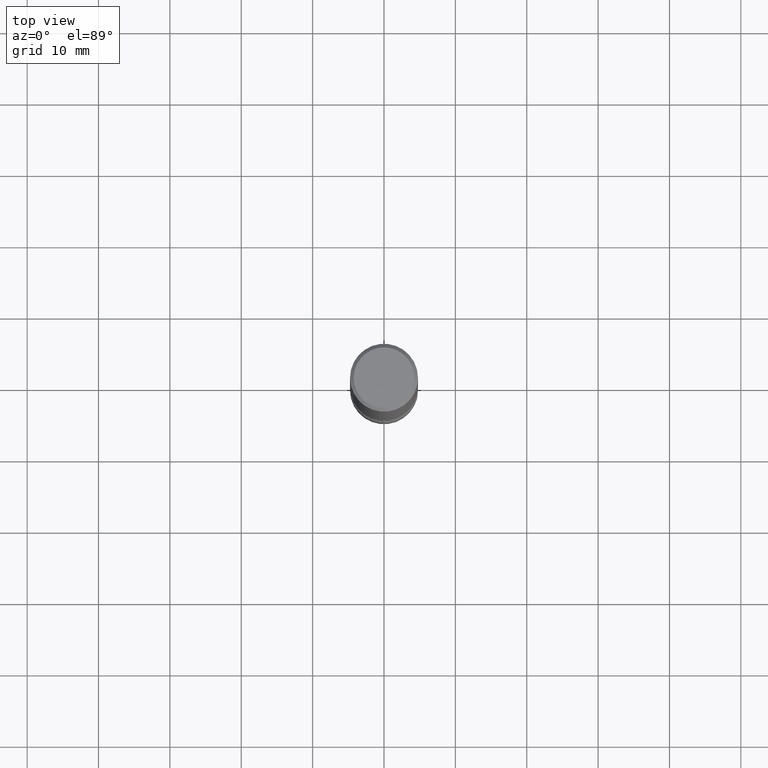
[diagram: clean part render]
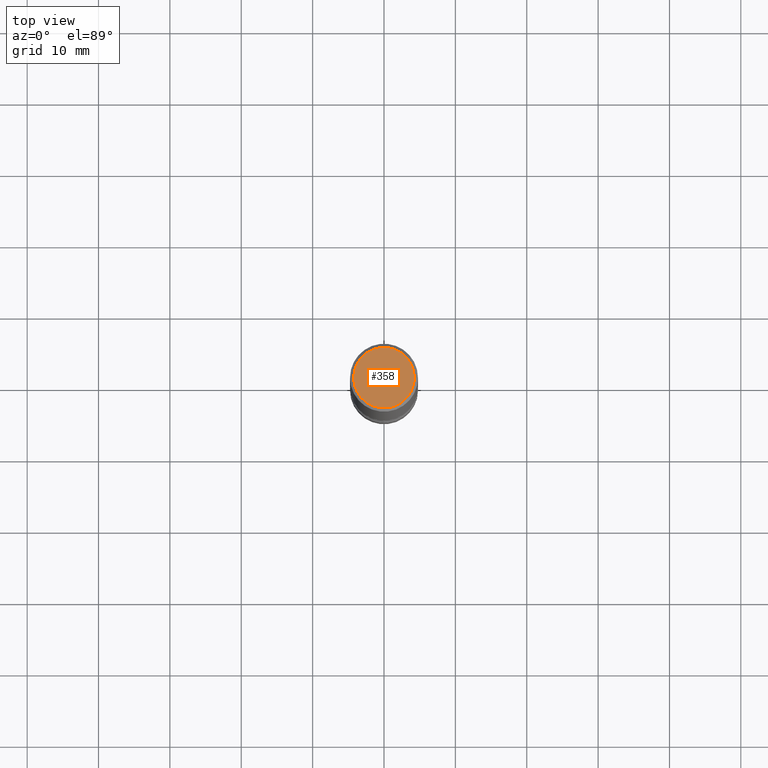
[diagram: same view with one face highlighted and labeled with its STEP entity id]
A machine part, top view. The second image highlights one B-rep face of the part: STEP entity #358.
In plain terms, the highlighted planar face has unit normal (0, -0, -1).
Its self-contained STEP definition (entity closure, byte-faithful):
#5 = DIRECTION ( 'NONE',  ( -2.445468806185136597E-29, 3.491481338843145583E-15, 1.000000000000000000 ) ) ;
#12 = FACE_OUTER_BOUND ( 'NONE', #266, .T. ) ;
#19 = CIRCLE ( 'NONE', #47, 0.1675000000000001210 ) ;
#28 = ORIENTED_EDGE ( 'NONE', *, *, #344, .T. ) ;
#46 = DIRECTION ( 'NONE',  ( 2.438088387897960049E-29, -3.491481338843145188E-15, -1.000000000000000000 ) ) ;
#47 = AXIS2_PLACEMENT_3D ( 'NONE', #169, #297, #208 ) ;
#49 = CARTESIAN_POINT ( 'NONE',  ( 1.169646248512450384E-15, 0.1675000000000001210, -5.848231242562273614E-16 ) ) ;
#116 = AXIS2_PLACEMENT_3D ( 'NONE', #126, #5, #163 ) ;
#126 = CARTESIAN_POINT ( 'NONE',  ( 0.000000000000000000, 0.000000000000000000, 0.000000000000000000 ) ) ;
#163 = DIRECTION ( 'NONE',  ( 1.000000000000000000, -6.982962677686266711E-15, 4.876176775795935232E-29 ) ) ;
#169 = CARTESIAN_POINT ( 'NONE',  ( 0.000000000000000000, 0.000000000000000000, 0.000000000000000000 ) ) ;
#202 = PLANE ( 'NONE',  #501 ) ;
#208 = DIRECTION ( 'NONE',  ( 1.000000000000000000, -6.982962677686266711E-15, 4.876176775795935232E-29 ) ) ;
#262 = CIRCLE ( 'NONE', #116, 0.1675000000000001210 ) ;
#266 = EDGE_LOOP ( 'NONE', ( #28, #538 ) ) ;
#297 = DIRECTION ( 'NONE',  ( -2.445468806185136597E-29, 3.491481338843145583E-15, 1.000000000000000000 ) ) ;
#344 = EDGE_CURVE ( 'NONE', #353, #514, #19, .T. ) ;
#353 = VERTEX_POINT ( 'NONE', #520 ) ;
#358 = ADVANCED_FACE ( 'NONE', ( #12 ), #202, .F. ) ;
#414 = CARTESIAN_POINT ( 'NONE',  ( 0.1675000000000001210, -1.252653207992879077E-15, 8.469775550109244990E-30 ) ) ;
#429 = EDGE_CURVE ( 'NONE', #514, #353, #262, .T. ) ;
#476 = DIRECTION ( 'NONE',  ( -1.000000000000000000, 6.982962677686265922E-15, -4.876176775795935793E-29 ) ) ;
#501 = AXIS2_PLACEMENT_3D ( 'NONE', #49, #46, #476 ) ;
#514 = VERTEX_POINT ( 'NONE', #414 ) ;
#520 = CARTESIAN_POINT ( 'NONE',  ( -0.1675000000000001210, 1.204561061900881639E-15, -8.301862719484118796E-30 ) ) ;
#538 = ORIENTED_EDGE ( 'NONE', *, *, #429, .T. ) ;